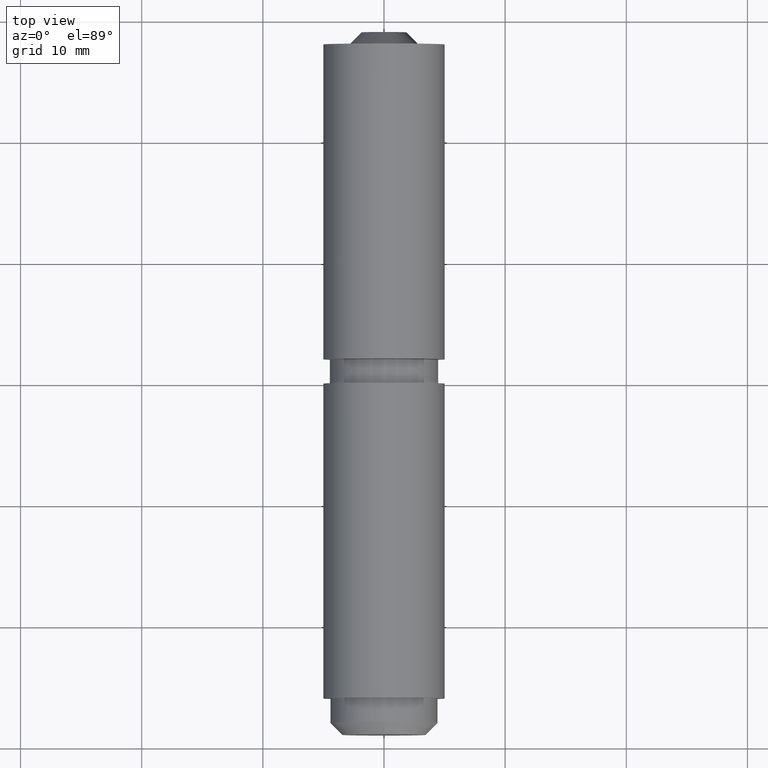
[diagram: clean part render]
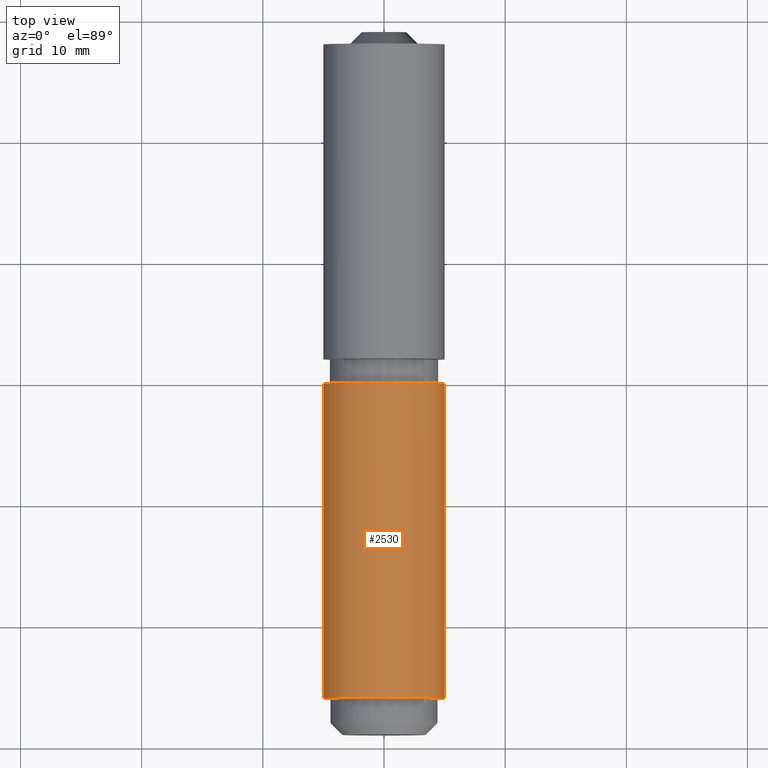
[diagram: same view with one face highlighted and labeled with its STEP entity id]
A machine part, top view. The second image highlights one B-rep face of the part: STEP entity #2530.
In plain terms, the highlighted cylindrical surface (partial cylindrical patch) has radius 5 mm, axis along (-0, -1, -0).
Its self-contained STEP definition (entity closure, byte-faithful):
#522 = CARTESIAN_POINT ( 'NONE',  ( -2.892857142857141461, 13.00000000000000000, -4.078158598070999119 ) ) ;
#764 = VERTEX_POINT ( 'NONE', #7349 ) ;
#962 = EDGE_LOOP ( 'NONE', ( #13982, #12203, #13988, #6201 ) ) ;
#990 = VECTOR ( 'NONE', #2750, 1000.000000000000000 ) ;
#1584 = DIRECTION ( 'NONE',  ( 0.000000000000000000, 0.000000000000000000, 1.000000000000000000 ) ) ;
#1797 = CIRCLE ( 'NONE', #7340, 5.000000000000000000 ) ;
#2310 = EDGE_CURVE ( 'NONE', #6447, #764, #13751, .T. ) ;
#2530 = ADVANCED_FACE ( 'NONE', ( #13392 ), #11971, .T. ) ;
#2750 = DIRECTION ( 'NONE',  ( -0.000000000000000000, -1.000000000000000000, -0.000000000000000000 ) ) ;
#4099 = CARTESIAN_POINT ( 'NONE',  ( 0.000000000000000000, 13.00000000000000000, 0.000000000000000000 ) ) ;
#6201 = ORIENTED_EDGE ( 'NONE', *, *, #13977, .T. ) ;
#6366 = DIRECTION ( 'NONE',  ( 0.000000000000000000, 0.000000000000000000, -1.000000000000000000 ) ) ;
#6447 = VERTEX_POINT ( 'NONE', #8301 ) ;
#6473 = EDGE_CURVE ( 'NONE', #6912, #6447, #7997, .T. ) ;
#6562 = DIRECTION ( 'NONE',  ( 0.000000000000000000, 0.000000000000000000, 1.000000000000000000 ) ) ;
#6645 = LINE ( 'NONE', #522, #990 ) ;
#6912 = VERTEX_POINT ( 'NONE', #12198 ) ;
#7208 = DIRECTION ( 'NONE',  ( 0.000000000000000000, 1.000000000000000000, 0.000000000000000000 ) ) ;
#7254 = DIRECTION ( 'NONE',  ( -0.000000000000000000, -1.000000000000000000, -0.000000000000000000 ) ) ;
#7340 = AXIS2_PLACEMENT_3D ( 'NONE', #14335, #11029, #6562 ) ;
#7349 = CARTESIAN_POINT ( 'NONE',  ( 2.892857142857142350, -12.99999999999999822, -4.078158598070997343 ) ) ;
#7459 = VERTEX_POINT ( 'NONE', #9503 ) ;
#7997 = CIRCLE ( 'NONE', #9101, 5.000000000000000000 ) ;
#8301 = CARTESIAN_POINT ( 'NONE',  ( 2.892857142857142350, 13.00000000000000000, -4.078158598070997343 ) ) ;
#8542 = DIRECTION ( 'NONE',  ( -0.000000000000000000, -1.000000000000000000, -0.000000000000000000 ) ) ;
#8777 = VECTOR ( 'NONE', #7254, 1000.000000000000000 ) ;
#9101 = AXIS2_PLACEMENT_3D ( 'NONE', #11718, #7208, #1584 ) ;
#9323 = EDGE_CURVE ( 'NONE', #7459, #764, #1797, .T. ) ;
#9503 = CARTESIAN_POINT ( 'NONE',  ( -2.892857142857141461, -12.99999999999999822, -4.078158598070999119 ) ) ;
#10503 = CARTESIAN_POINT ( 'NONE',  ( 2.892857142857142350, 13.00000000000000000, -4.078158598070997343 ) ) ;
#11029 = DIRECTION ( 'NONE',  ( 0.000000000000000000, 1.000000000000000000, 0.000000000000000000 ) ) ;
#11718 = CARTESIAN_POINT ( 'NONE',  ( 0.000000000000000000, 13.00000000000000000, 0.000000000000000000 ) ) ;
#11971 = CYLINDRICAL_SURFACE ( 'NONE', #13533, 5.000000000000000000 ) ;
#12198 = CARTESIAN_POINT ( 'NONE',  ( -2.892857142857141461, 13.00000000000000000, -4.078158598070999119 ) ) ;
#12203 = ORIENTED_EDGE ( 'NONE', *, *, #2310, .F. ) ;
#13392 = FACE_OUTER_BOUND ( 'NONE', #962, .T. ) ;
#13533 = AXIS2_PLACEMENT_3D ( 'NONE', #4099, #8542, #6366 ) ;
#13751 = LINE ( 'NONE', #10503, #8777 ) ;
#13977 = EDGE_CURVE ( 'NONE', #6912, #7459, #6645, .T. ) ;
#13982 = ORIENTED_EDGE ( 'NONE', *, *, #9323, .T. ) ;
#13988 = ORIENTED_EDGE ( 'NONE', *, *, #6473, .F. ) ;
#14335 = CARTESIAN_POINT ( 'NONE',  ( 0.000000000000000000, -12.99999999999999822, 0.000000000000000000 ) ) ;